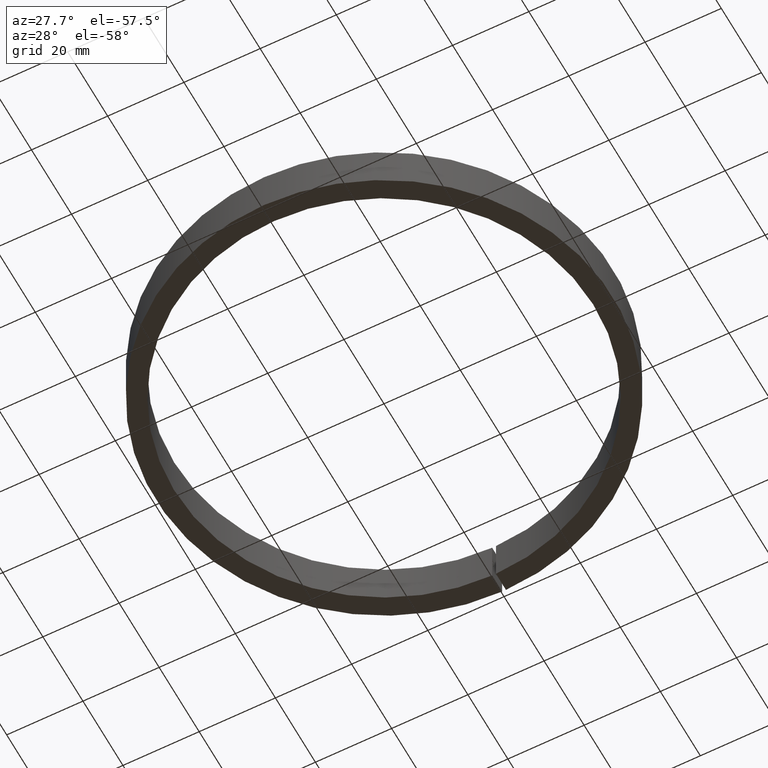
[diagram: clean part render]
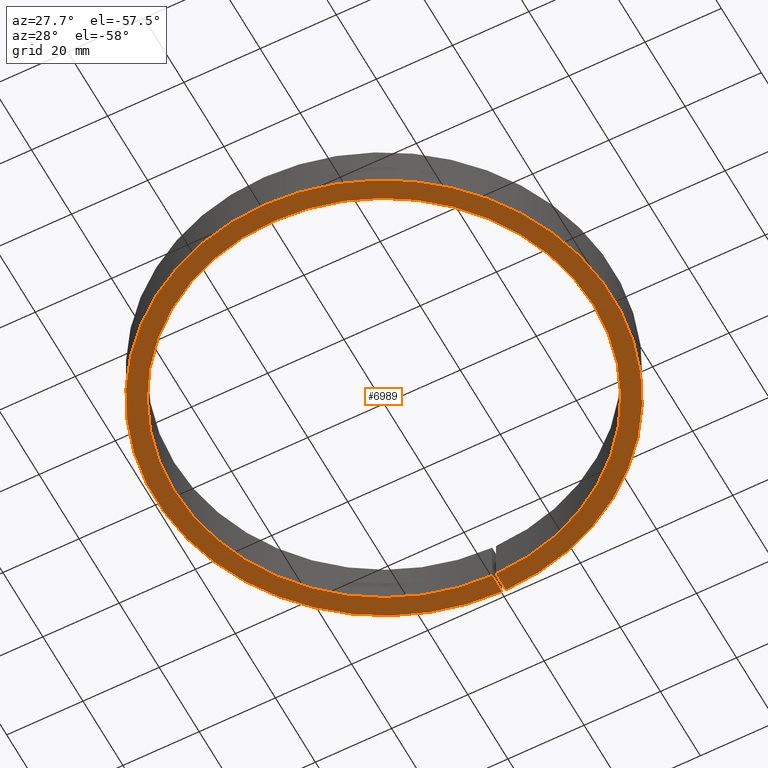
[diagram: same view with one face highlighted and labeled with its STEP entity id]
A machine part, auxiliary view. The second image highlights one B-rep face of the part: STEP entity #6989.
In plain terms, the highlighted planar face has unit normal (0, 0, 1).
Its self-contained STEP definition (entity closure, byte-faithful):
#8 = AXIS2_PLACEMENT_3D ( 'NONE', #8267, #3149, #3871 ) ;
#9 = VECTOR ( 'NONE', #5421, 1000.000000000000000 ) ;
#131 = VECTOR ( 'NONE', #6031, 1000.000000000000000 ) ;
#544 = LINE ( 'NONE', #2442, #9 ) ;
#990 = PLANE ( 'NONE',  #3647 ) ;
#1106 = DIRECTION ( 'NONE',  ( 1.000000000000000000, 0.0000000000000000000, -0.0000000000000000000 ) ) ;
#1135 = VERTEX_POINT ( 'NONE', #7824 ) ;
#1272 = EDGE_CURVE ( 'NONE', #6171, #6924, #3290, .T. ) ;
#1364 = CIRCLE ( 'NONE', #8, 60.00000000000000000 ) ;
#1819 = DIRECTION ( 'NONE',  ( 0.0000000000000000000, 0.0000000000000000000, 1.000000000000000000 ) ) ;
#2442 = CARTESIAN_POINT ( 'NONE',  ( -0.5000000000000000000, 0.0000000000000000000, -6.000000000000001800 ) ) ;
#3149 = DIRECTION ( 'NONE',  ( -0.0000000000000000000, -0.0000000000000000000, -1.000000000000000000 ) ) ;
#3290 = CIRCLE ( 'NONE', #4298, 55.00000000000000000 ) ;
#3590 = VERTEX_POINT ( 'NONE', #6279 ) ;
#3647 = AXIS2_PLACEMENT_3D ( 'NONE', #4662, #1819, #1106 ) ;
#3789 = CARTESIAN_POINT ( 'NONE',  ( 0.5000000000000000000, 0.0000000000000000000, -6.000000000000001800 ) ) ;
#3853 = CARTESIAN_POINT ( 'NONE',  ( 0.0000000000000000000, 0.0000000000000000000, -6.000000000000000900 ) ) ;
#3871 = DIRECTION ( 'NONE',  ( -1.000000000000000000, 0.0000000000000000000, 0.0000000000000000000 ) ) ;
#4018 = FACE_OUTER_BOUND ( 'NONE', #7587, .T. ) ;
#4280 = ORIENTED_EDGE ( 'NONE', *, *, #5948, .T. ) ;
#4298 = AXIS2_PLACEMENT_3D ( 'NONE', #3853, #8222, #8898 ) ;
#4490 = ORIENTED_EDGE ( 'NONE', *, *, #7531, .T. ) ;
#4662 = CARTESIAN_POINT ( 'NONE',  ( 0.0000000000000000000, -55.00000000000000000, -6.000000000000001800 ) ) ;
#5073 = CARTESIAN_POINT ( 'NONE',  ( 0.5000000000000000000, 54.99772722576815900, -6.000000000000001800 ) ) ;
#5421 = DIRECTION ( 'NONE',  ( 0.0000000000000000000, 1.000000000000000000, -0.0000000000000000000 ) ) ;
#5461 = EDGE_CURVE ( 'NONE', #6924, #1135, #544, .T. ) ;
#5769 = CARTESIAN_POINT ( 'NONE',  ( -0.5000000000000000000, 54.99772722576815900, -6.000000000000001800 ) ) ;
#5948 = EDGE_CURVE ( 'NONE', #3590, #1135, #1364, .T. ) ;
#6031 = DIRECTION ( 'NONE',  ( 0.0000000000000000000, 1.000000000000000000, -0.0000000000000000000 ) ) ;
#6057 = LINE ( 'NONE', #3789, #131 ) ;
#6171 = VERTEX_POINT ( 'NONE', #5073 ) ;
#6279 = CARTESIAN_POINT ( 'NONE',  ( 0.5000000000000000000, 59.99791663049642700, -6.000000000000001800 ) ) ;
#6924 = VERTEX_POINT ( 'NONE', #5769 ) ;
#6989 = ADVANCED_FACE ( 'NONE', ( #4018 ), #990, .F. ) ;
#7531 = EDGE_CURVE ( 'NONE', #6171, #3590, #6057, .T. ) ;
#7587 = EDGE_LOOP ( 'NONE', ( #8125, #4490, #4280, #8279 ) ) ;
#7824 = CARTESIAN_POINT ( 'NONE',  ( -0.5000000000000000000, 59.99791663049643400, -6.000000000000001800 ) ) ;
#8125 = ORIENTED_EDGE ( 'NONE', *, *, #1272, .F. ) ;
#8222 = DIRECTION ( 'NONE',  ( -0.0000000000000000000, -0.0000000000000000000, -1.000000000000000000 ) ) ;
#8267 = CARTESIAN_POINT ( 'NONE',  ( 0.0000000000000000000, 0.0000000000000000000, -6.000000000000001800 ) ) ;
#8279 = ORIENTED_EDGE ( 'NONE', *, *, #5461, .F. ) ;
#8898 = DIRECTION ( 'NONE',  ( -1.000000000000000000, 0.0000000000000000000, 0.0000000000000000000 ) ) ;